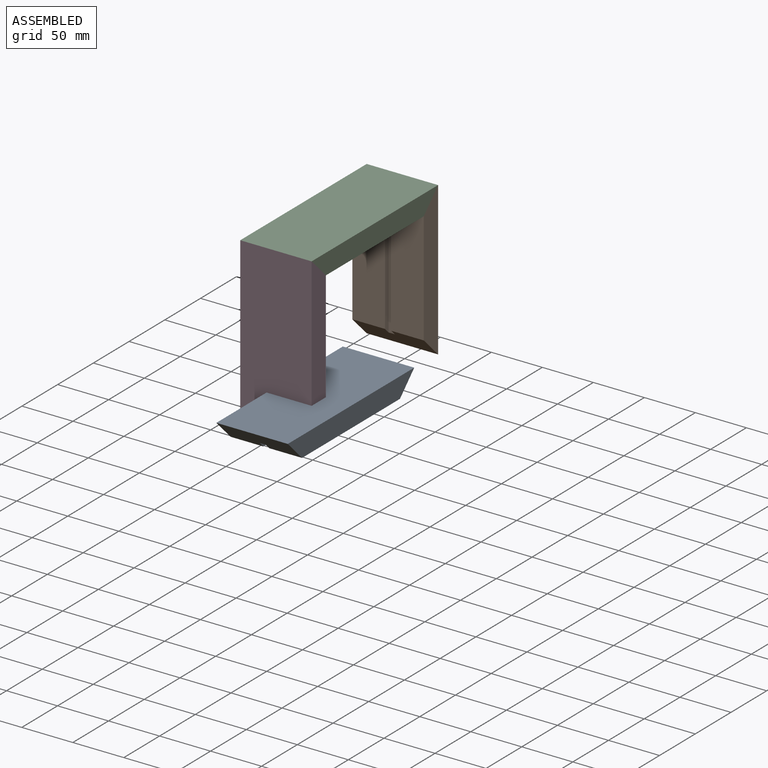
[diagram: assembled view]
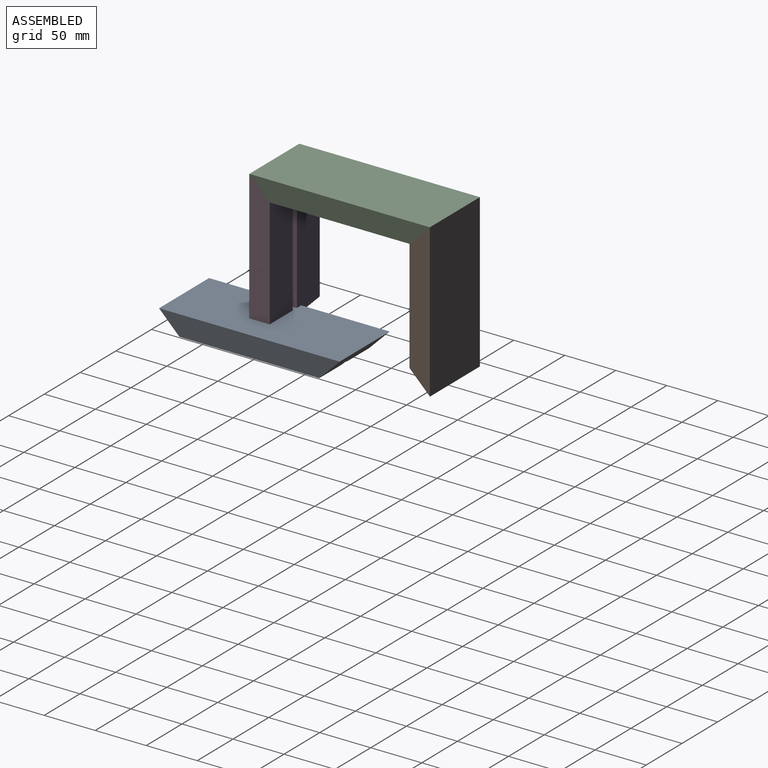
[diagram: assembled view, second angle]
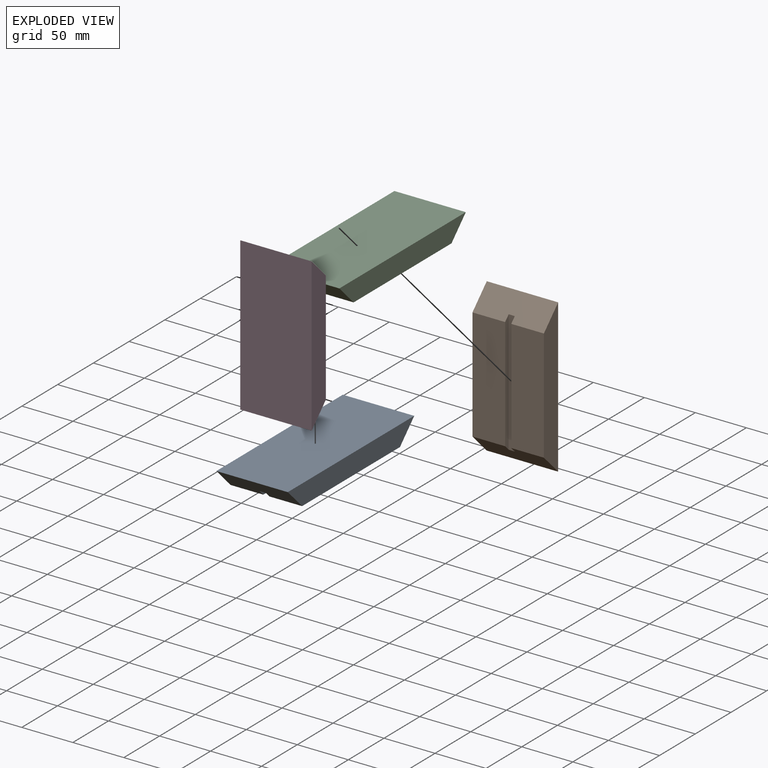
[diagram: exploded view]
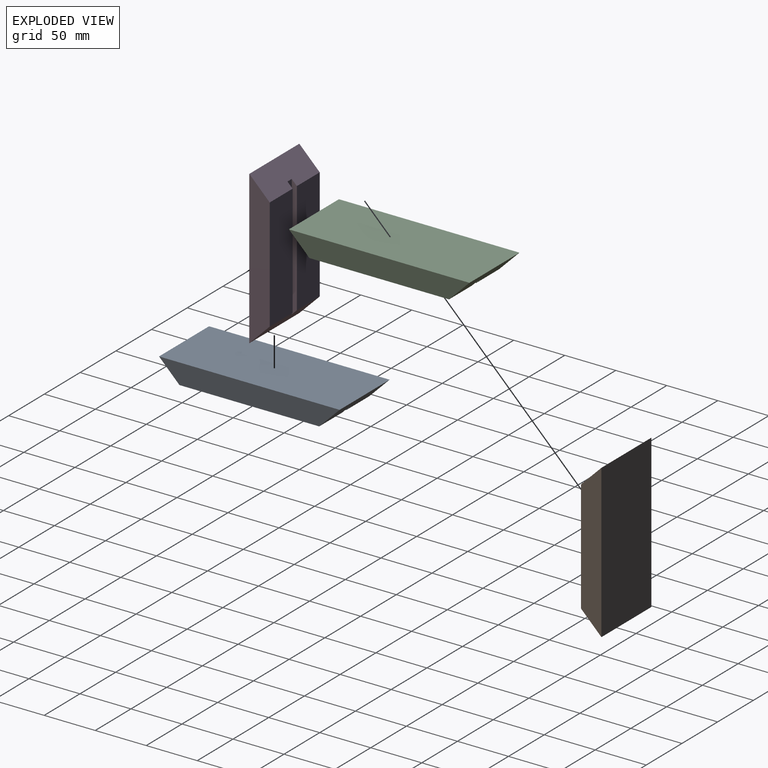
[diagram: exploded view, second angle]
ASSEMBLY  parts=4 mates=2
PART A: 10 faces, bbox 70x177x20 mm
  f0: plane 177x20mm, normal (-1,0,0), area 3140mm2, adj f1,f7,f8,f9
  f1: plane 137x32mm, normal (0,0,-1), area 4384mm2, adj f0,f2,f8,f9
  f2: plane 147x5mm, normal (1,0,0), area 710mm2, adj f1,f3,f8,f9
  f3: plane 147x6mm, normal (0,0,-1), area 882mm2, adj f2,f4,f8,f9
  f4: plane 147x5mm, normal (-1,0,0), area 710mm2, adj f3,f5,f8,f9
  f5: plane 137x32mm, normal (0,0,-1), area 4384mm2, adj f4,f6,f8,f9
  f6: plane 177x20mm, normal (1,0,0), area 3140mm2, adj f5,f7,f8,f9
  f7: plane 177x70mm, normal (0,0,1), area 12390mm2, adj f0,f6,f8,f9
  f8: plane 70x20mm, normal (0,-0.71,-0.71), area 1937.5mm2, adj f0,f1,f2,f3,f4,f5,f6,f7
  f9: plane 70x20mm, normal (0,0.71,-0.71), area 1937.5mm2, adj f0,f1,f2,f3,f4,f5,f6,f7
PART B: 10 faces, bbox 150x70x20 mm
  f0: plane 150x20mm, normal (0,-1,0), area 2600mm2, adj f1,f7,f8,f9
  f1: plane 110x32mm, normal (0,0,-1), area 3520mm2, adj f0,f2,f8,f9
  f2: plane 120x5mm, normal (0,1,0), area 575mm2, adj f1,f3,f8,f9
  f3: plane 120x6mm, normal (0,0,-1), area 720mm2, adj f2,f4,f8,f9
  f4: plane 120x5mm, normal (0,-1,0), area 575mm2, adj f3,f5,f8,f9
  f5: plane 110x32mm, normal (0,0,-1), area 3520mm2, adj f4,f6,f8,f9
  f6: plane 150x20mm, normal (0,1,0), area 2600mm2, adj f5,f7,f8,f9
  f7: plane 150x70mm, normal (0,0,1), area 10500mm2, adj f0,f6,f8,f9
  f8: plane 70x20mm, normal (0.71,0,-0.71), area 1937.5mm2, adj f0,f1,f2,f3,f4,f5,f6,f7
  f9: plane 70x20mm, normal (-0.71,0,-0.71), area 1937.5mm2, adj f0,f1,f2,f3,f4,f5,f6,f7
PART C: same geometry as A
PART D: same geometry as B
PLACE A t=(-14.16,-1.54,-149.92)mm
PLACE B rot(axis=(-0.58,0.58,0.58),120deg) t=(-20.59,42.28,-15.01)mm
PLACE C t=(-40.05,68.81,-21.98)mm
PLACE D rot(axis=(0.58,0.58,-0.58),120deg) t=(10.13,-81.67,-15.01)mm
MATE planar D.f9 <-> C.f8  axis (0,0.71,0.71) through (-5.23,-98.36,-24.85)mm
MATE planar B.f9 <-> C.f9  axis (0,-0.71,0.71) through (-5.23,58.97,-24.85)mm
